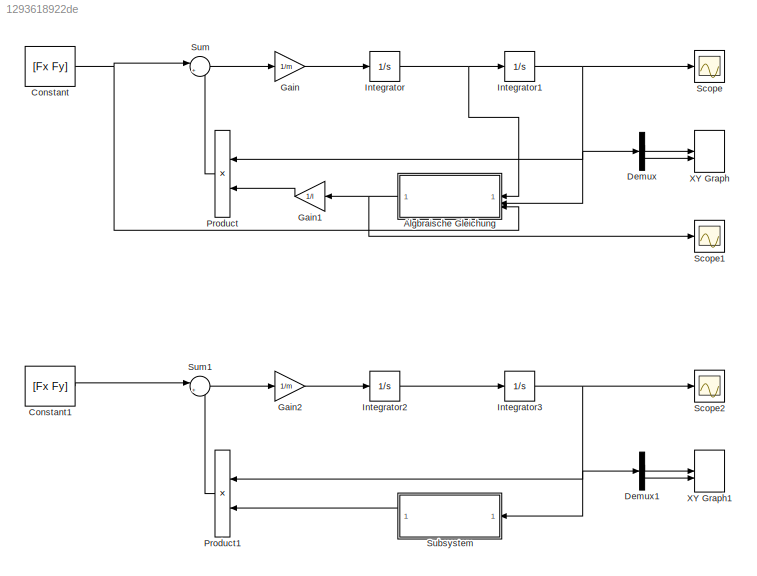
MODEL slx_1293618922de
KIND model
CONFIG AbsTol = auto
CONFIG EnableMultiTasking = off
CONFIG FixedStep = auto
CONFIG MaxStep = auto
CONFIG MinStep = auto
CONFIG RelTol = 1e-3
CONFIG SampleTimeConstraint = Unconstrained
CONFIG SolverName = ode45
CONFIG StartTime = 0.0
CONFIG StopTime = 100
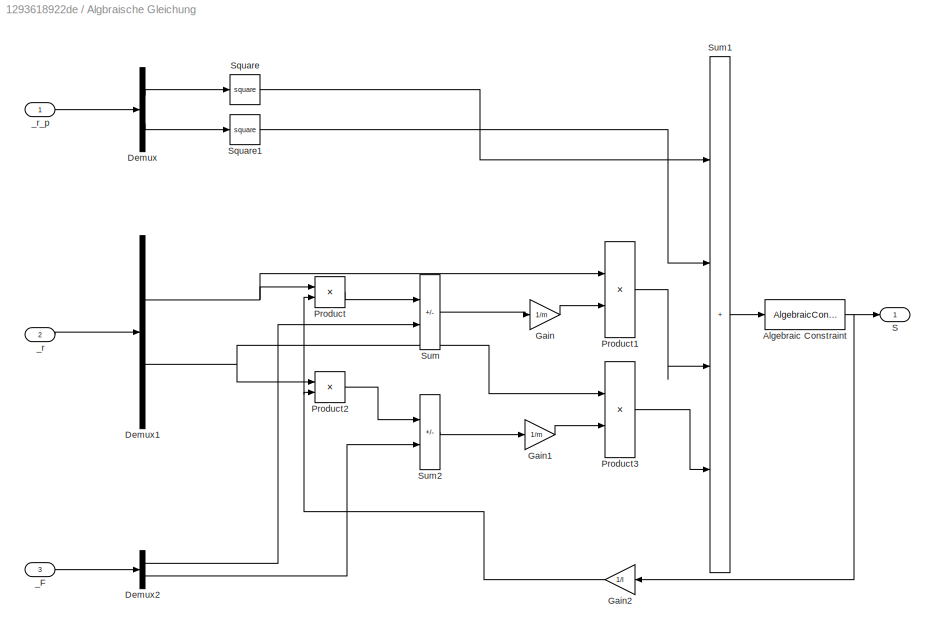
BLOCK [SubSystem] Algbraische Gleichung
  NameLocation = top
BLOCK [AlgebraicConstraint] Algbraische Gleichung/Algebraic Constraint
BLOCK [Demux] Algbraische Gleichung/Demux
  Outputs = 2
BLOCK [Demux] Algbraische Gleichung/Demux1
  Outputs = 2
BLOCK [Demux] Algbraische Gleichung/Demux2
  Outputs = 2
BLOCK [Gain] Algbraische Gleichung/Gain
  Gain = 1/m
BLOCK [Gain] Algbraische Gleichung/Gain1
  Gain = 1/m
BLOCK [Gain] Algbraische Gleichung/Gain2
  Gain = 1/l
  NameLocation = top
BLOCK [Product] Algbraische Gleichung/Product
BLOCK [Product] Algbraische Gleichung/Product1
BLOCK [Product] Algbraische Gleichung/Product2
BLOCK [Product] Algbraische Gleichung/Product3
BLOCK [Outport] Algbraische Gleichung/S
BLOCK [Math] Algbraische Gleichung/Square
  Operator = square
BLOCK [Math] Algbraische Gleichung/Square1
  Operator = square
BLOCK [Sum] Algbraische Gleichung/Sum
  IconShape = rectangular
  Inputs = -+
BLOCK [Sum] Algbraische Gleichung/Sum1
  IconShape = rectangular
  Inputs = ++++
BLOCK [Sum] Algbraische Gleichung/Sum2
  IconShape = rectangular
  Inputs = -+
BLOCK [Inport] Algbraische Gleichung/_F
  Port = 3
BLOCK [Inport] Algbraische Gleichung/_r
  Port = 2
BLOCK [Inport] Algbraische Gleichung/_r_p
BLOCK [Constant] Constant
  Value = [Fx Fy]
BLOCK [Constant] Constant1
  Value = [Fx Fy]
BLOCK [Demux] Demux
  Outputs = 2
BLOCK [Demux] Demux1
  Outputs = 2
BLOCK [Gain] Gain
  Gain = 1/m
BLOCK [Gain] Gain1
  Gain = 1/l
  NameLocation = top
BLOCK [Gain] Gain2
  Gain = 1/m
BLOCK [Integrator] Integrator
BLOCK [Integrator] Integrator1
  InitialCondition = x0([1,3])
BLOCK [Integrator] Integrator2
BLOCK [Integrator] Integrator3
  InitialCondition = x0([1,3])
BLOCK [Product] Product
  NameLocation = top
BLOCK [Product] Product1
  NameLocation = top
BLOCK [Scope] Scope
  Floating = off
  NumInputPorts = 1
  ScopeSpecificationString = Simulink.scopes.TimeScopeBlockCfg('CurrentConfiguration', extmgr.ConfigurationSet(extmgr.Configuration('Core','General UI',true),extmgr.Configuration('Core','Source UI',true),extmgr.Configuration('Sources','WiredSimulink',true),extmgr.Configuration('Visuals','Time Domain',true,'SerializedDisplays',{struct('MinYLimReal','-52.50027','MaxYLimReal','52.50026','YLabelReal','','MinYLimMag','0.00000','Ma...<+1487ch>
BLOCK [Scope] Scope1
  Floating = off
  NumInputPorts = 1
  ScopeSpecificationString = Simulink.scopes.TimeScopeBlockCfg('CurrentConfiguration', extmgr.ConfigurationSet(extmgr.Configuration('Core','General UI',true),extmgr.Configuration('Core','Source UI',true),extmgr.Configuration('Sources','WiredSimulink',true,'DataLoggingVariableName','ScopeData1'),extmgr.Configuration('Visuals','Time Domain',true,'SerializedDisplays',{struct('MinYLimReal','-37.49995','MaxYLimReal','337.49952','Y...<+1416ch>
BLOCK [Scope] Scope2
  Floating = off
  NumInputPorts = 1
  ScopeSpecificationString = Simulink.scopes.TimeScopeBlockCfg('CurrentConfiguration', extmgr.ConfigurationSet(extmgr.Configuration('Core','General UI',true),extmgr.Configuration('Core','Source UI',true),extmgr.Configuration('Sources','WiredSimulink',true,'DataLoggingVariableName','ScopeData2'),extmgr.Configuration('Visuals','Time Domain',true,'SerializedDisplays',{struct('MinYLimReal','-53.47848','MaxYLimReal','53.58939','YL...<+1494ch>
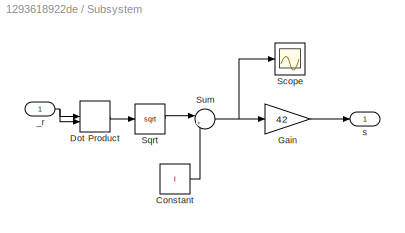
BLOCK [SubSystem] Subsystem
  NameLocation = top
BLOCK [Constant] Subsystem/Constant
  Value = l
BLOCK [DotProduct] Subsystem/Dot Product
  OutDataTypeStr = Inherit: Inherit via internal rule
BLOCK [Gain] Subsystem/Gain
  Gain = 42
BLOCK [Scope] Subsystem/Scope
  Floating = off
  NumInputPorts = 1
  ScopeSpecificationString = Simulink.scopes.TimeScopeBlockCfg('CurrentConfiguration', extmgr.ConfigurationSet(extmgr.Configuration('Core','General UI',true),extmgr.Configuration('Core','Source UI',true),extmgr.Configuration('Sources','WiredSimulink',true,'DataLoggingVariableName','ScopeData3'),extmgr.Configuration('Visuals','Time Domain',true,'SerializedDisplays',{struct('MinYLimReal','-0.99088','MaxYLimReal','1.15138','YLab...<+1491ch>
BLOCK [Sqrt] Subsystem/Sqrt
BLOCK [Sum] Subsystem/Sum
  Inputs = |+-
BLOCK [Inport] Subsystem/_r
BLOCK [Outport] Subsystem/s
BLOCK [Sum] Sum
  Inputs = |+-
BLOCK [Sum] Sum1
  Inputs = |+-
BLOCK [Record] XY Graph
  CompatibilityTag = XY
  FileSettingsInternal = {"entries":[{"content":{"excelSettings":{"content":{},"type":"Streamout.ExcelSettings"}},"type":"Streamout.FileSettingStorage","uuid":""}],"packageUris":["http:\/\/schema.mathworks.com\/mf0\/streamout_blocks\/R2020a"],"version":"1.0"}
  Layout = [1 1]
  SignalsInternal = {"entries":[{"content":{"signals":[{"content":{"blockPath":[],"dimensions":[1],"domain":"","lineColor":"#77ac30","plots":[1],"port":1,"sid":[""],"signalID":28,"signalName":"Demux:1"},"type":"RecordBlkView.Signal","uuid":""},{"content":{"blockPath":[],"dimensions":[1],"domain":"","lineColor":"#4dbeee","plots":[1],"port":2,"sid":[""],"signalID":32,"signalName":"Demux:2"},"type":"RecordBlkView.Signal...<+158ch>
  VisualizationBindings = {"xyplotplugin":{"info":[{"series":[{"bindingParametersList":[{"parameter":"X-Axis","signalID":28,"signalName":"Demux:1"},{"parameter":"Y-Axis","signalID":32,"signalName":"Demux:2"}],"seriesID":1577}],"subplotID":1}]}}
BLOCK [Record] XY Graph1
  CompatibilityTag = XY
  FileSettingsInternal = {"entries":[{"content":{"excelSettings":{"content":{},"type":"Streamout.ExcelSettings"}},"type":"Streamout.FileSettingStorage","uuid":""}],"packageUris":["http:\/\/schema.mathworks.com\/mf0\/streamout_blocks\/R2020a"],"version":"1.0"}
  Layout = [1 1]
  SignalsInternal = {"entries":[{"content":{"signals":[{"content":{"blockPath":[],"dimensions":[1],"domain":"","lineColor":"#a2142f","plots":[1],"port":1,"sid":[""],"signalID":36,"signalName":"Demux1:1"},"type":"RecordBlkView.Signal","uuid":""},{"content":{"blockPath":[],"dimensions":[1],"domain":"","lineColor":"#139fff","plots":[1],"port":2,"sid":[""],"signalID":40,"signalName":"Demux1:2"},"type":"RecordBlkView.Sign...<+160ch>
  VisualizationBindings = {"xyplotplugin":{"info":[{"series":[{"bindingParametersList":[{"parameter":"X-Axis","signalID":36,"signalName":"Demux1:1"},{"parameter":"Y-Axis","signalID":40,"signalName":"Demux1:2"}],"seriesID":20431}],"subplotID":1}]}}
NET Algbraische Gleichung/Algebraic Constraint:1 -> Algbraische Gleichung/Gain2:1, Algbraische Gleichung/S:1
NET Algbraische Gleichung/Demux1:1 -> Algbraische Gleichung/Product1:1, Algbraische Gleichung/Product:1
NET Algbraische Gleichung/Demux1:2 -> Algbraische Gleichung/Product2:1, Algbraische Gleichung/Product3:1
LINE Algbraische Gleichung/Demux2:1 -> Algbraische Gleichung/Sum:2
LINE Algbraische Gleichung/Demux2:2 -> Algbraische Gleichung/Sum2:2
LINE Algbraische Gleichung/Demux:1 -> Algbraische Gleichung/Square:1
LINE Algbraische Gleichung/Demux:2 -> Algbraische Gleichung/Square1:1
LINE Algbraische Gleichung/Gain1:1 -> Algbraische Gleichung/Product3:2
NET Algbraische Gleichung/Gain2:1 -> Algbraische Gleichung/Product2:2, Algbraische Gleichung/Product:2
LINE Algbraische Gleichung/Gain:1 -> Algbraische Gleichung/Product1:2
LINE Algbraische Gleichung/Product1:1 -> Algbraische Gleichung/Sum1:3
LINE Algbraische Gleichung/Product2:1 -> Algbraische Gleichung/Sum2:1
LINE Algbraische Gleichung/Product3:1 -> Algbraische Gleichung/Sum1:4
LINE Algbraische Gleichung/Product:1 -> Algbraische Gleichung/Sum:1
LINE Algbraische Gleichung/Square1:1 -> Algbraische Gleichung/Sum1:2
LINE Algbraische Gleichung/Square:1 -> Algbraische Gleichung/Sum1:1
LINE Algbraische Gleichung/Sum1:1 -> Algbraische Gleichung/Algebraic Constraint:1
LINE Algbraische Gleichung/Sum2:1 -> Algbraische Gleichung/Gain1:1
LINE Algbraische Gleichung/Sum:1 -> Algbraische Gleichung/Gain:1
LINE Algbraische Gleichung/_F:1 -> Algbraische Gleichung/Demux2:1
LINE Algbraische Gleichung/_r:1 -> Algbraische Gleichung/Demux1:1
LINE Algbraische Gleichung/_r_p:1 -> Algbraische Gleichung/Demux:1
NET Algbraische Gleichung:1 -> Gain1:1, Scope1:1
LINE Constant1:1 -> Sum1:1
NET Constant:1 -> Algbraische Gleichung:3, Sum:1
LINE Demux1:1 -> XY Graph1:1
LINE Demux1:2 -> XY Graph1:2
LINE Demux:1 -> XY Graph:1
LINE Demux:2 -> XY Graph:2
LINE Gain1:1 -> Product:2
LINE Gain2:1 -> Integrator2:1
LINE Gain:1 -> Integrator:1
NET Integrator1:1 -> Algbraische Gleichung:2, Demux:1, Product:1, Scope:1
LINE Integrator2:1 -> Integrator3:1
NET Integrator3:1 -> Demux1:1, Product1:1, Scope2:1, Subsystem:1
NET Integrator:1 -> Algbraische Gleichung:1, Integrator1:1
LINE Product1:1 -> Sum1:2
LINE Product:1 -> Sum:2
LINE Subsystem/Constant:1 -> Subsystem/Sum:2
LINE Subsystem/Dot Product:1 -> Subsystem/Sqrt:1
LINE Subsystem/Gain:1 -> Subsystem/s:1
LINE Subsystem/Sqrt:1 -> Subsystem/Sum:1
NET Subsystem/Sum:1 -> Subsystem/Gain:1, Subsystem/Scope:1
NET Subsystem/_r:1 -> Subsystem/Dot Product:1, Subsystem/Dot Product:2
LINE Subsystem:1 -> Product1:2
LINE Sum1:1 -> Gain2:1
LINE Sum:1 -> Gain:1
note: NET lines group one-source signal fan-out (src -> all destinations, sorted); 1:1 wires keep LINE
